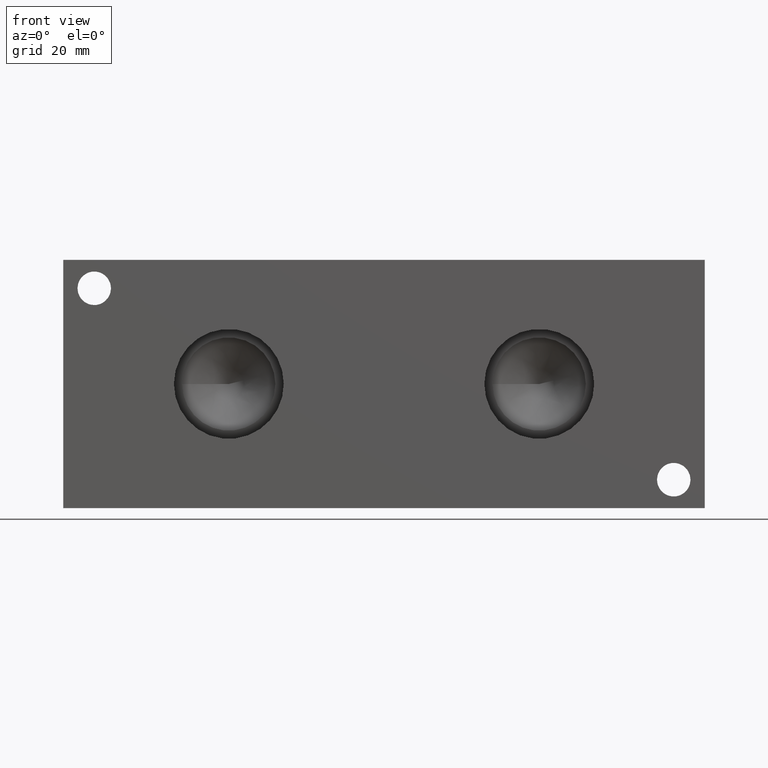
[diagram: clean part render]
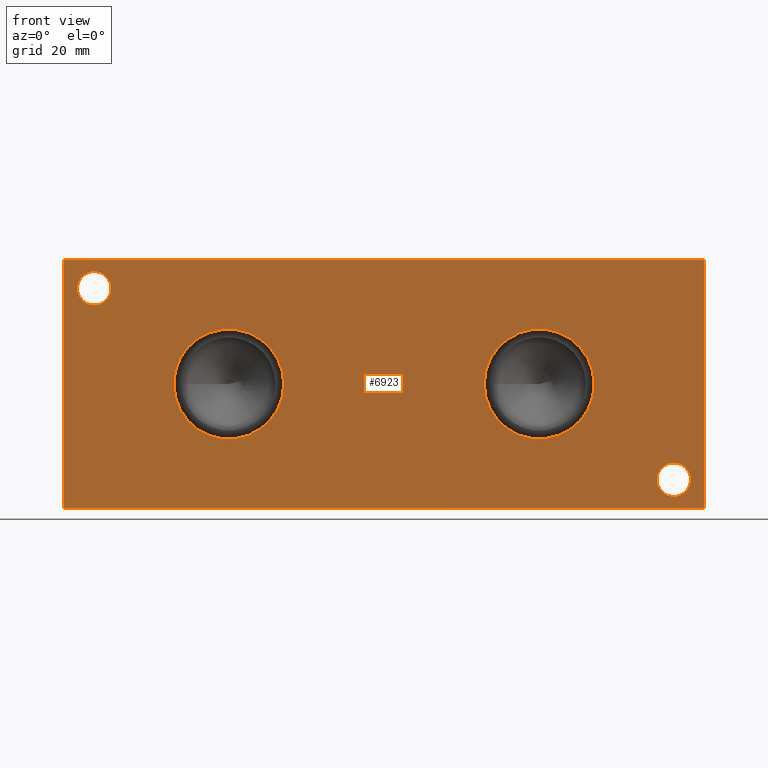
[diagram: same view with one face highlighted and labeled with its STEP entity id]
A machine part, front view. The second image highlights one B-rep face of the part: STEP entity #6923.
In plain terms, the highlighted planar face has unit normal (0, -1, 0).
Its self-contained STEP definition (entity closure, byte-faithful):
#75=CIRCLE('',#7187,16.8529);
#76=CIRCLE('',#7188,16.8529);
#82=CIRCLE('',#7198,16.8529);
#83=CIRCLE('',#7199,16.8529);
#84=CIRCLE('',#7202,5.1562);
#85=CIRCLE('',#7203,5.1562);
#87=CIRCLE('',#7212,5.1562);
#88=CIRCLE('',#7213,5.1562);
#450=FACE_BOUND('',#1194,.T.);
#451=FACE_BOUND('',#1195,.T.);
#452=FACE_BOUND('',#1196,.T.);
#453=FACE_BOUND('',#1197,.T.);
#802=FACE_OUTER_BOUND('',#1193,.T.);
#1193=EDGE_LOOP('',(#6028,#6029,#6030,#6031));
#1194=EDGE_LOOP('',(#6032,#6033));
#1195=EDGE_LOOP('',(#6034,#6035));
#1196=EDGE_LOOP('',(#6036,#6037));
#1197=EDGE_LOOP('',(#6038,#6039));
#1579=LINE('',#9455,#2262);
#1878=LINE('',#11801,#2561);
#1883=LINE('',#11810,#2566);
#1884=LINE('',#11812,#2567);
#2262=VECTOR('',#7894,10.);
#2561=VECTOR('',#8535,10.);
#2566=VECTOR('',#8544,10.);
#2567=VECTOR('',#8547,10.);
#2830=VERTEX_POINT('',#9453);
#2831=VERTEX_POINT('',#9454);
#3168=VERTEX_POINT('',#11688);
#3169=VERTEX_POINT('',#11689);
#3176=VERTEX_POINT('',#11710);
#3177=VERTEX_POINT('',#11711);
#3178=VERTEX_POINT('',#11718);
#3179=VERTEX_POINT('',#11719);
#3183=VERTEX_POINT('',#11736);
#3184=VERTEX_POINT('',#11737);
#3203=VERTEX_POINT('',#11799);
#3205=VERTEX_POINT('',#11808);
#3599=EDGE_CURVE('',#2830,#2831,#1579,.T.);
#4093=EDGE_CURVE('',#3168,#3169,#75,.T.);
#4094=EDGE_CURVE('',#3169,#3168,#76,.T.);
#4103=EDGE_CURVE('',#3176,#3177,#82,.T.);
#4104=EDGE_CURVE('',#3177,#3176,#83,.T.);
#4107=EDGE_CURVE('',#3178,#3179,#84,.T.);
#4108=EDGE_CURVE('',#3179,#3178,#85,.T.);
#4117=EDGE_CURVE('',#3183,#3184,#87,.T.);
#4118=EDGE_CURVE('',#3184,#3183,#88,.T.);
#4148=EDGE_CURVE('',#3203,#2830,#1878,.T.);
#4153=EDGE_CURVE('',#3205,#2831,#1883,.T.);
#4154=EDGE_CURVE('',#3203,#3205,#1884,.T.);
#6028=ORIENTED_EDGE('',*,*,#4154,.T.);
#6029=ORIENTED_EDGE('',*,*,#4153,.T.);
#6030=ORIENTED_EDGE('',*,*,#3599,.F.);
#6031=ORIENTED_EDGE('',*,*,#4148,.F.);
#6032=ORIENTED_EDGE('',*,*,#4093,.T.);
#6033=ORIENTED_EDGE('',*,*,#4094,.T.);
#6034=ORIENTED_EDGE('',*,*,#4103,.T.);
#6035=ORIENTED_EDGE('',*,*,#4104,.T.);
#6036=ORIENTED_EDGE('',*,*,#4107,.T.);
#6037=ORIENTED_EDGE('',*,*,#4108,.T.);
#6038=ORIENTED_EDGE('',*,*,#4117,.T.);
#6039=ORIENTED_EDGE('',*,*,#4118,.T.);
#6271=PLANE('',#7246);
#6923=ADVANCED_FACE('',(#802,#450,#451,#452,#453),#6271,.T.);
#7187=AXIS2_PLACEMENT_3D('',#11690,#8401,#8402);
#7188=AXIS2_PLACEMENT_3D('',#11691,#8403,#8404);
#7198=AXIS2_PLACEMENT_3D('',#11712,#8426,#8427);
#7199=AXIS2_PLACEMENT_3D('',#11713,#8428,#8429);
#7202=AXIS2_PLACEMENT_3D('',#11720,#8436,#8437);
#7203=AXIS2_PLACEMENT_3D('',#11721,#8438,#8439);
#7212=AXIS2_PLACEMENT_3D('',#11738,#8459,#8460);
#7213=AXIS2_PLACEMENT_3D('',#11739,#8461,#8462);
#7246=AXIS2_PLACEMENT_3D('',#11811,#8545,#8546);
#7894=DIRECTION('',(1.,0.,0.));
#8401=DIRECTION('center_axis',(0.,1.,0.));
#8402=DIRECTION('ref_axis',(1.,0.,0.));
#8403=DIRECTION('center_axis',(0.,1.,0.));
#8404=DIRECTION('ref_axis',(1.,0.,0.));
#8426=DIRECTION('center_axis',(0.,1.,0.));
#8427=DIRECTION('ref_axis',(1.,0.,0.));
#8428=DIRECTION('center_axis',(0.,1.,0.));
#8429=DIRECTION('ref_axis',(1.,0.,0.));
#8436=DIRECTION('center_axis',(0.,1.,0.));
#8437=DIRECTION('ref_axis',(1.,0.,0.));
#8438=DIRECTION('center_axis',(0.,1.,0.));
#8439=DIRECTION('ref_axis',(1.,0.,0.));
#8459=DIRECTION('center_axis',(0.,1.,0.));
#8460=DIRECTION('ref_axis',(1.,0.,0.));
#8461=DIRECTION('center_axis',(0.,1.,0.));
#8462=DIRECTION('ref_axis',(1.,0.,0.));
#8535=DIRECTION('',(0.,0.,1.));
#8544=DIRECTION('',(0.,0.,1.));
#8545=DIRECTION('center_axis',(0.,-1.,0.));
#8546=DIRECTION('ref_axis',(1.,0.,0.));
#8547=DIRECTION('',(1.,0.,0.));
#9453=CARTESIAN_POINT('',(0.,0.,76.2));
#9454=CARTESIAN_POINT('',(196.85,0.,76.2));
#9455=CARTESIAN_POINT('',(0.,0.,76.2));
#11688=CARTESIAN_POINT('',(67.6529,0.,38.1));
#11689=CARTESIAN_POINT('',(33.9471,0.,38.1));
#11690=CARTESIAN_POINT('Origin',(50.8,0.,38.1));
#11691=CARTESIAN_POINT('Origin',(50.8,0.,38.1));
#11710=CARTESIAN_POINT('',(162.9029,0.,38.1));
#11711=CARTESIAN_POINT('',(129.1971,0.,38.1));
#11712=CARTESIAN_POINT('Origin',(146.05,0.,38.1));
#11713=CARTESIAN_POINT('Origin',(146.05,0.,38.1));
#11718=CARTESIAN_POINT('',(192.4812,0.,8.7376));
#11719=CARTESIAN_POINT('',(182.1688,0.,8.7376));
#11720=CARTESIAN_POINT('Origin',(187.325,0.,8.7376));
#11721=CARTESIAN_POINT('Origin',(187.325,0.,8.7376));
#11736=CARTESIAN_POINT('',(14.6812,0.,67.4624));
#11737=CARTESIAN_POINT('',(4.3688,0.,67.4624));
#11738=CARTESIAN_POINT('Origin',(9.525,0.,67.4624));
#11739=CARTESIAN_POINT('Origin',(9.525,0.,67.4624));
#11799=CARTESIAN_POINT('',(0.,0.,0.));
#11801=CARTESIAN_POINT('',(0.,0.,0.));
#11808=CARTESIAN_POINT('',(196.85,0.,0.));
#11810=CARTESIAN_POINT('',(196.85,0.,0.));
#11811=CARTESIAN_POINT('Origin',(0.,0.,0.));
#11812=CARTESIAN_POINT('',(0.,0.,0.));